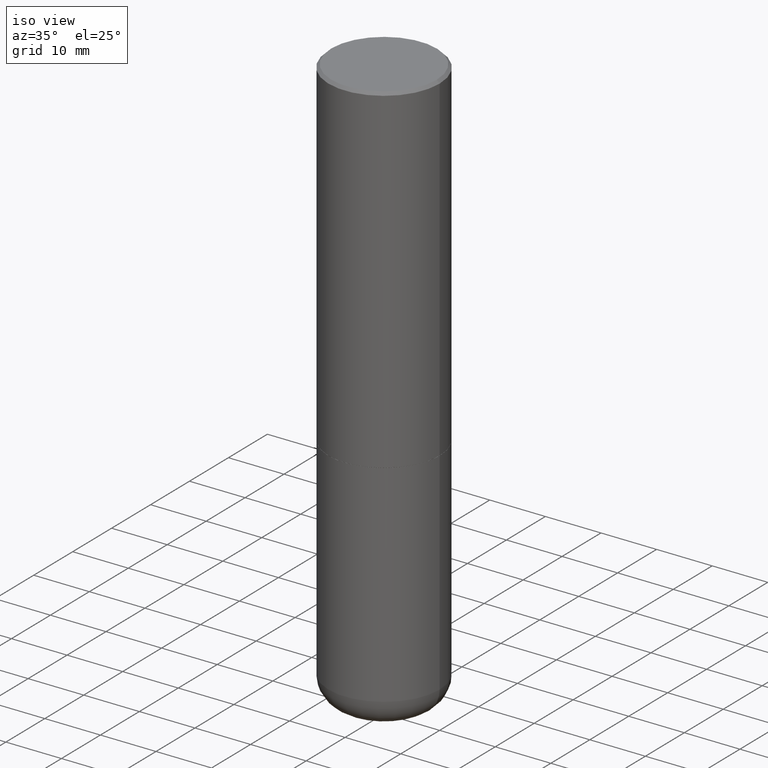
[diagram: clean part render]
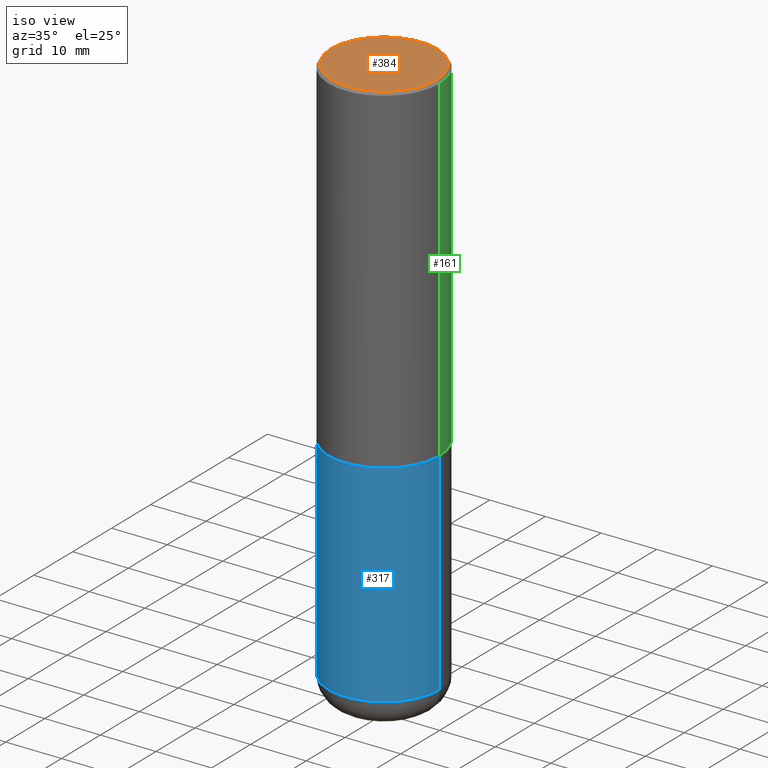
[diagram: same view with three faces highlighted in distinct colors, each labeled with its STEP entity id]
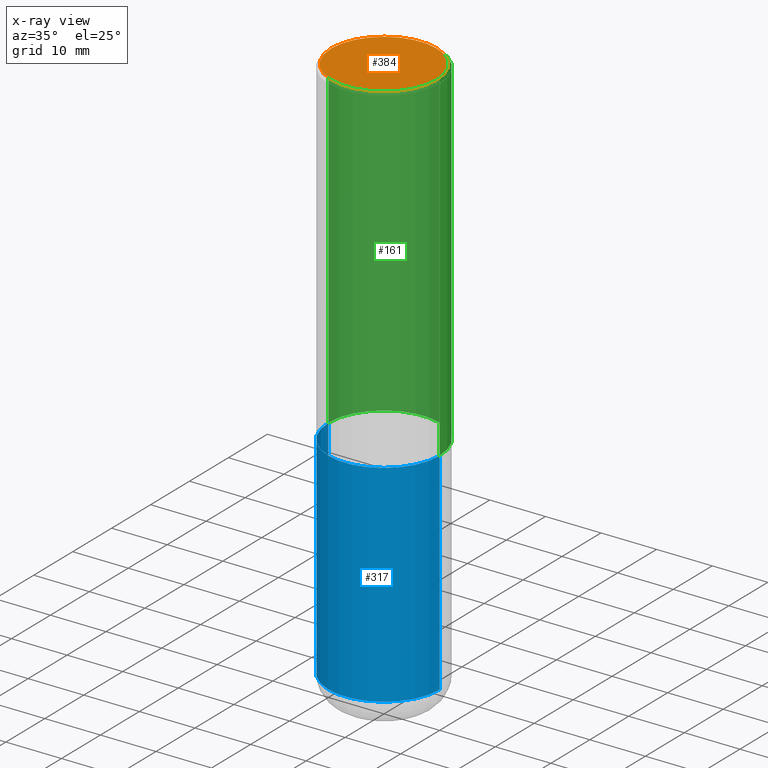
[diagram: x-ray of the same camera — body ghosted, the three highlighted faces saturated]
A machine part, iso view with three faces highlighted in distinct colors.
The next image is the same camera in x-ray (body ghosted, the three faces saturated) — at least one of them is partly hidden behind the body in this view.
Their STEP definitions:

[orange] entity #384 — the highlighted planar face has unit normal (0, -0, -1).
#51 = AXIS2_PLACEMENT_3D ( 'NONE', #393, #364, #290 ) ;
#70 = AXIS2_PLACEMENT_3D ( 'NONE', #344, #366, #340 ) ;
#99 = EDGE_CURVE ( 'NONE', #108, #172, #177, .T. ) ;
#108 = VERTEX_POINT ( 'NONE', #337 ) ;
#121 = FACE_OUTER_BOUND ( 'NONE', #236, .T. ) ;
#172 = VERTEX_POINT ( 'NONE', #275 ) ;
#177 = CIRCLE ( 'NONE', #70, 0.3736999999999997546 ) ;
#226 = CIRCLE ( 'NONE', #243, 0.3736999999999997546 ) ;
#236 = EDGE_LOOP ( 'NONE', ( #386, #372 ) ) ;
#238 = PLANE ( 'NONE',  #51 ) ;
#243 = AXIS2_PLACEMENT_3D ( 'NONE', #251, #409, #415 ) ;
#251 = CARTESIAN_POINT ( 'NONE',  ( -5.428027354543142984E-45, 7.749784485978325769E-31, 2.219626494852213988E-16 ) ) ;
#275 = CARTESIAN_POINT ( 'NONE',  ( 0.3736999999999997546, -2.667287895133366781E-15, 2.219626494852398384E-16 ) ) ;
#290 = DIRECTION ( 'NONE',  ( -1.000000000000000000, 6.982962677686265922E-15, -4.876176775795935793E-29 ) ) ;
#337 = CARTESIAN_POINT ( 'NONE',  ( -0.3736999999999997546, 2.644447966039789058E-15, 2.219626494852030085E-16 ) ) ;
#340 = DIRECTION ( 'NONE',  ( 1.000000000000000000, -6.982962677686266711E-15, 4.877734241229879050E-29 ) ) ;
#344 = CARTESIAN_POINT ( 'NONE',  ( -5.428027354543142984E-45, 7.749784485978325769E-31, 2.219626494852213988E-16 ) ) ;
#364 = DIRECTION ( 'NONE',  ( 2.438088387897960049E-29, -3.491481338843145188E-15, -1.000000000000000000 ) ) ;
#366 = DIRECTION ( 'NONE',  ( -2.445468806185136597E-29, 3.491481338843145583E-15, 1.000000000000000000 ) ) ;
#372 = ORIENTED_EDGE ( 'NONE', *, *, #417, .T. ) ;
#384 = ADVANCED_FACE ( 'NONE', ( #121 ), #238, .F. ) ;
#386 = ORIENTED_EDGE ( 'NONE', *, *, #99, .T. ) ;
#393 = CARTESIAN_POINT ( 'NONE',  ( 2.609533152651355831E-15, 0.3736999999999997546, -1.193785251583072147E-15 ) ) ;
#409 = DIRECTION ( 'NONE',  ( -2.445468806185136597E-29, 3.491481338843145583E-15, 1.000000000000000000 ) ) ;
#415 = DIRECTION ( 'NONE',  ( 1.000000000000000000, -6.982962677686266711E-15, 4.877734241229879050E-29 ) ) ;
#417 = EDGE_CURVE ( 'NONE', #172, #108, #226, .T. ) ;

[blue] entity #317 — the highlighted cylindrical surface (partial cylindrical patch) has radius 10 mm, axis along (-0, 0, 1).
#17 = AXIS2_PLACEMENT_3D ( 'NONE', #79, #168, #321 ) ;
#19 = CARTESIAN_POINT ( 'NONE',  ( -0.3937000000000000499, -8.199362874132856734E-15, -2.401600000000000179 ) ) ;
#24 = DIRECTION ( 'NONE',  ( -2.445468806185136877E-29, 3.491481338843145188E-15, 1.000000000000000000 ) ) ;
#25 = VECTOR ( 'NONE', #24, 39.37007874015748143 ) ;
#26 = ORIENTED_EDGE ( 'NONE', *, *, #171, .F. ) ;
#38 = EDGE_CURVE ( 'NONE', #67, #43, #109, .T. ) ;
#43 = VERTEX_POINT ( 'NONE', #245 ) ;
#46 = VERTEX_POINT ( 'NONE', #19 ) ;
#67 = VERTEX_POINT ( 'NONE', #403 ) ;
#71 = DIRECTION ( 'NONE',  ( -2.445468806185136877E-29, 3.491481338843145188E-15, 1.000000000000000000 ) ) ;
#76 = CYLINDRICAL_SURFACE ( 'NONE', #363, 0.3937000000000000499 ) ;
#79 = CARTESIAN_POINT ( 'NONE',  ( 9.531459218987190195E-29, -1.360839766627504578E-14, -3.897600000000000620 ) ) ;
#92 = VECTOR ( 'NONE', #71, 39.37007874015748143 ) ;
#103 = CIRCLE ( 'NONE', #17, 0.3937000000000000499 ) ;
#109 = LINE ( 'NONE', #160, #25 ) ;
#111 = FACE_OUTER_BOUND ( 'NONE', #179, .T. ) ;
#123 = CARTESIAN_POINT ( 'NONE',  ( -0.3936999999999999389, -1.081099091558753178E-14, -3.897600000000000620 ) ) ;
#131 = AXIS2_PLACEMENT_3D ( 'NONE', #273, #336, #154 ) ;
#145 = EDGE_CURVE ( 'NONE', #196, #46, #175, .T. ) ;
#148 = EDGE_CURVE ( 'NONE', #196, #67, #103, .T. ) ;
#154 = DIRECTION ( 'NONE',  ( 1.000000000000000000, -6.982962677686265133E-15, 0.000000000000000000 ) ) ;
#160 = CARTESIAN_POINT ( 'NONE',  ( 0.3937000000000000499, -2.749192406205083217E-15, 1.919750796630860172E-29 ) ) ;
#168 = DIRECTION ( 'NONE',  ( -2.445468806185136597E-29, 3.491481338843145583E-15, 1.000000000000000000 ) ) ;
#171 = EDGE_CURVE ( 'NONE', #46, #43, #294, .T. ) ;
#175 = LINE ( 'NONE', #356, #92 ) ;
#179 = EDGE_LOOP ( 'NONE', ( #255, #322, #193, #26 ) ) ;
#193 = ORIENTED_EDGE ( 'NONE', *, *, #38, .T. ) ;
#196 = VERTEX_POINT ( 'NONE', #123 ) ;
#245 = CARTESIAN_POINT ( 'NONE',  ( 0.3937000000000000499, -1.113433398957078206E-14, -2.401600000000000179 ) ) ;
#255 = ORIENTED_EDGE ( 'NONE', *, *, #145, .F. ) ;
#269 = CARTESIAN_POINT ( 'NONE',  ( 0.000000000000000000, 0.000000000000000000, 0.000000000000000000 ) ) ;
#273 = CARTESIAN_POINT ( 'NONE',  ( 5.873037884934224349E-29, -8.385141583365698841E-15, -2.401600000000000179 ) ) ;
#294 = CIRCLE ( 'NONE', #131, 0.3937000000000000499 ) ;
#317 = ADVANCED_FACE ( 'NONE', ( #111 ), #76, .T. ) ;
#318 = DIRECTION ( 'NONE',  ( -2.445468806185136597E-29, 3.491481338843145583E-15, 1.000000000000000000 ) ) ;
#321 = DIRECTION ( 'NONE',  ( 1.000000000000000000, -6.982962677686267499E-15, 0.000000000000000000 ) ) ;
#322 = ORIENTED_EDGE ( 'NONE', *, *, #148, .T. ) ;
#331 = DIRECTION ( 'NONE',  ( 1.000000000000000000, -6.982962677686265922E-15, 4.876176775795935793E-29 ) ) ;
#336 = DIRECTION ( 'NONE',  ( -2.445468806185136597E-29, 3.491481338843145583E-15, 1.000000000000000000 ) ) ;
#356 = CARTESIAN_POINT ( 'NONE',  ( -0.3937000000000000499, 2.797406750687514786E-15, -1.936584745033356735E-29 ) ) ;
#363 = AXIS2_PLACEMENT_3D ( 'NONE', #269, #318, #331 ) ;
#403 = CARTESIAN_POINT ( 'NONE',  ( 0.3936999999999999389, -1.635759007248013057E-14, -3.897600000000000620 ) ) ;

[green] entity #161 — the highlighted cylindrical surface (partial cylindrical patch) has radius 10 mm, axis along (-0, 0, 1).
#6 = FACE_OUTER_BOUND ( 'NONE', #120, .T. ) ;
#7 = ORIENTED_EDGE ( 'NONE', *, *, #252, .T. ) ;
#8 = VECTOR ( 'NONE', #408, 39.37007874015748143 ) ;
#10 = CARTESIAN_POINT ( 'NONE',  ( -0.3937000000000001609, 2.797406750687515575E-15, -1.936584745033357296E-29 ) ) ;
#12 = DIRECTION ( 'NONE',  ( 1.000000000000000000, -6.982962677686266711E-15, 4.876176775795935793E-29 ) ) ;
#20 = DIRECTION ( 'NONE',  ( -2.445468806185136597E-29, 3.491481338843145583E-15, 1.000000000000000000 ) ) ;
#55 = EDGE_CURVE ( 'NONE', #231, #182, #302, .T. ) ;
#56 = AXIS2_PLACEMENT_3D ( 'NONE', #332, #402, #12 ) ;
#63 = CARTESIAN_POINT ( 'NONE',  ( -0.3937000000000003830, -1.428333113714341032E-15, -2.400600000000000289 ) ) ;
#65 = CIRCLE ( 'NONE', #217, 0.3937000000000002720 ) ;
#74 = VERTEX_POINT ( 'NONE', #63 ) ;
#89 = EDGE_CURVE ( 'NONE', #163, #231, #401, .T. ) ;
#120 = EDGE_LOOP ( 'NONE', ( #209, #7, #288, #237 ) ) ;
#147 = DIRECTION ( 'NONE',  ( -2.445468806185136877E-29, 3.491481338843145188E-15, 1.000000000000000000 ) ) ;
#151 = CARTESIAN_POINT ( 'NONE',  ( 0.3937000000000001609, -2.749192406205084400E-15, 1.919750796630860732E-29 ) ) ;
#155 = DIRECTION ( 'NONE',  ( 1.000000000000000000, -6.982962677686265922E-15, 0.000000000000000000 ) ) ;
#156 = DIRECTION ( 'NONE',  ( 1.000000000000000000, -6.982962677686265922E-15, 0.000000000000000000 ) ) ;
#161 = ADVANCED_FACE ( 'NONE', ( #6 ), #215, .T. ) ;
#163 = VERTEX_POINT ( 'NONE', #339 ) ;
#170 = AXIS2_PLACEMENT_3D ( 'NONE', #274, #333, #155 ) ;
#182 = VERTEX_POINT ( 'NONE', #266 ) ;
#188 = CARTESIAN_POINT ( 'NONE',  ( 5.870592416128038746E-29, -8.381650102026855834E-15, -2.400600000000000289 ) ) ;
#209 = ORIENTED_EDGE ( 'NONE', *, *, #214, .T. ) ;
#214 = EDGE_CURVE ( 'NONE', #163, #74, #65, .T. ) ;
#215 = CYLINDRICAL_SURFACE ( 'NONE', #56, 0.3937000000000001609 ) ;
#217 = AXIS2_PLACEMENT_3D ( 'NONE', #188, #20, #156 ) ;
#231 = VERTEX_POINT ( 'NONE', #350 ) ;
#237 = ORIENTED_EDGE ( 'NONE', *, *, #89, .F. ) ;
#252 = EDGE_CURVE ( 'NONE', #74, #182, #297, .T. ) ;
#266 = CARTESIAN_POINT ( 'NONE',  ( -0.3937000000000000499, 2.679362779428219918E-15, -0.02000000000000008715 ) ) ;
#274 = CARTESIAN_POINT ( 'NONE',  ( 4.890937612370294178E-31, -6.982962677686321191E-17, -0.02000000000000008715 ) ) ;
#288 = ORIENTED_EDGE ( 'NONE', *, *, #55, .F. ) ;
#297 = LINE ( 'NONE', #10, #405 ) ;
#302 = CIRCLE ( 'NONE', #170, 0.3937000000000000499 ) ;
#332 = CARTESIAN_POINT ( 'NONE',  ( 0.000000000000000000, 0.000000000000000000, 0.000000000000000000 ) ) ;
#333 = DIRECTION ( 'NONE',  ( -2.445468806185136597E-29, 3.491481338843145583E-15, 1.000000000000000000 ) ) ;
#339 = CARTESIAN_POINT ( 'NONE',  ( 0.3937000000000002720, -1.113084250823194063E-14, -2.400600000000000289 ) ) ;
#350 = CARTESIAN_POINT ( 'NONE',  ( 0.3937000000000000499, -2.770807688499515734E-15, -0.02000000000000008715 ) ) ;
#401 = LINE ( 'NONE', #151, #8 ) ;
#402 = DIRECTION ( 'NONE',  ( -2.445468806185136597E-29, 3.491481338843145583E-15, 1.000000000000000000 ) ) ;
#405 = VECTOR ( 'NONE', #147, 39.37007874015748143 ) ;
#408 = DIRECTION ( 'NONE',  ( -2.445468806185136877E-29, 3.491481338843145188E-15, 1.000000000000000000 ) ) ;